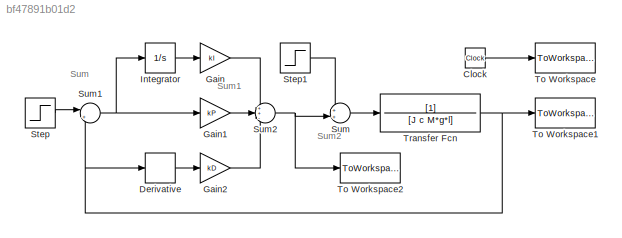
MODEL slx_bf47891b01d2
KIND model
BLOCK [Clock] Clock
BLOCK [Derivative] Derivative
BLOCK [Gain] Gain
  Gain = kI
  OutDataTypeStr = Inherit: Inherit via internal rule
  ParamDataTypeStr = Inherit: Inherit via internal rule
  SaturateOnIntegerOverflow = off
BLOCK [Gain] Gain1
  Gain = kP
  OutDataTypeStr = Inherit: Inherit via internal rule
  ParamDataTypeStr = Inherit: Inherit via internal rule
  SaturateOnIntegerOverflow = off
BLOCK [Gain] Gain2
  Gain = kD
  OutDataTypeStr = Inherit: Inherit via internal rule
  ParamDataTypeStr = Inherit: Inherit via internal rule
  SaturateOnIntegerOverflow = off
BLOCK [Integrator] Integrator
  Ports = [1, 1]
BLOCK [Step] Step
  After = rc
  SampleTime = 0
  Time = 0
BLOCK [Step] Step1
  After = dc
  SampleTime = 0
  Time = 1.5
BLOCK [Sum] Sum
  IconShape = round
  InputSameDT = off
  Inputs = ++|
  OutDataTypeStr = Inherit: Inherit via internal rule
  Ports = [2, 1]
  SaturateOnIntegerOverflow = off
BLOCK [Sum] Sum1
  IconShape = round
  InputSameDT = off
  Inputs = |+-
  OutDataTypeStr = Inherit: Inherit via internal rule
  Ports = [2, 1]
  SaturateOnIntegerOverflow = off
BLOCK [Sum] Sum2
  IconShape = round
  InputSameDT = off
  Inputs = ++-
  OutDataTypeStr = Inherit: Inherit via internal rule
  Ports = [3, 1]
  SaturateOnIntegerOverflow = off
BLOCK [ToWorkspace] To Workspace
  MaxDataPoints = inf
  Ports = [1]
  SampleTime = -1
  VariableName = t
BLOCK [ToWorkspace] To Workspace1
  MaxDataPoints = inf
  Ports = [1]
  SampleTime = -1
  VariableName = y
BLOCK [ToWorkspace] To Workspace2
  MaxDataPoints = inf
  Ports = [1]
  SampleTime = -1
  VariableName = u
BLOCK [TransferFcn] Transfer Fcn
  Denominator = [J c M*g*l]
ANNOTATION (root): Sum
ANNOTATION (root): Sum1
ANNOTATION (root): Sum2
LINE Clock:1 -> To Workspace:1
LINE Derivative:1 -> Gain2:1
LINE Gain1:1 -> Sum2:2
LINE Gain2:1 -> Sum2:3
LINE Gain:1 -> Sum2:1
LINE Integrator:1 -> Gain:1
LINE Step1:1 -> Sum:1
LINE Step:1 -> Sum1:1
NET Sum1:1 -> Gain1:1, Integrator:1
NET Sum2:1 -> Sum:2, To Workspace2:1
LINE Sum:1 -> Transfer Fcn:1
NET Transfer Fcn:1 -> Derivative:1, Sum1:2, To Workspace1:1
note: NET lines group one-source signal fan-out (src -> all destinations, sorted); 1:1 wires keep LINE
